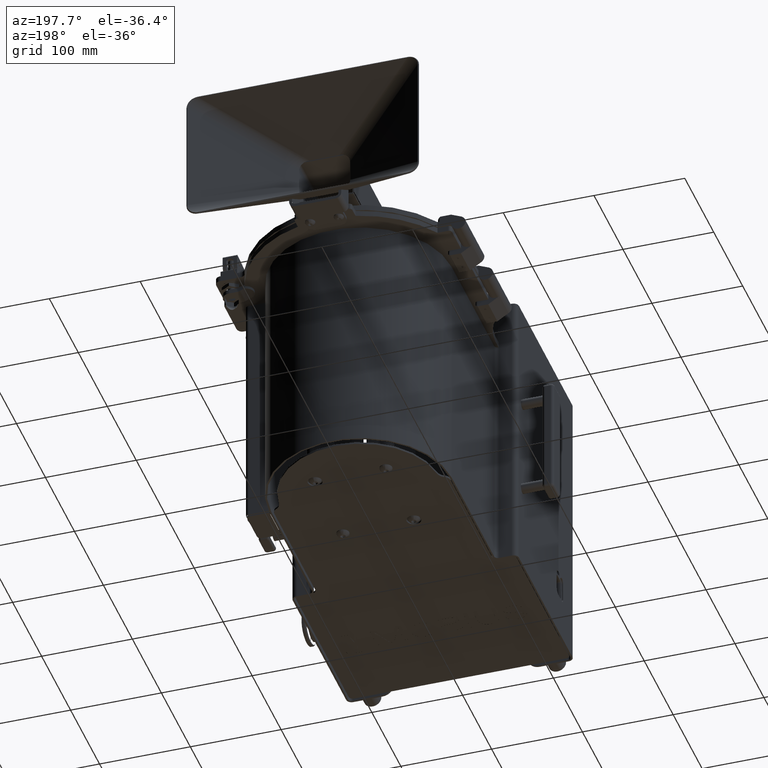
[diagram: clean part render]
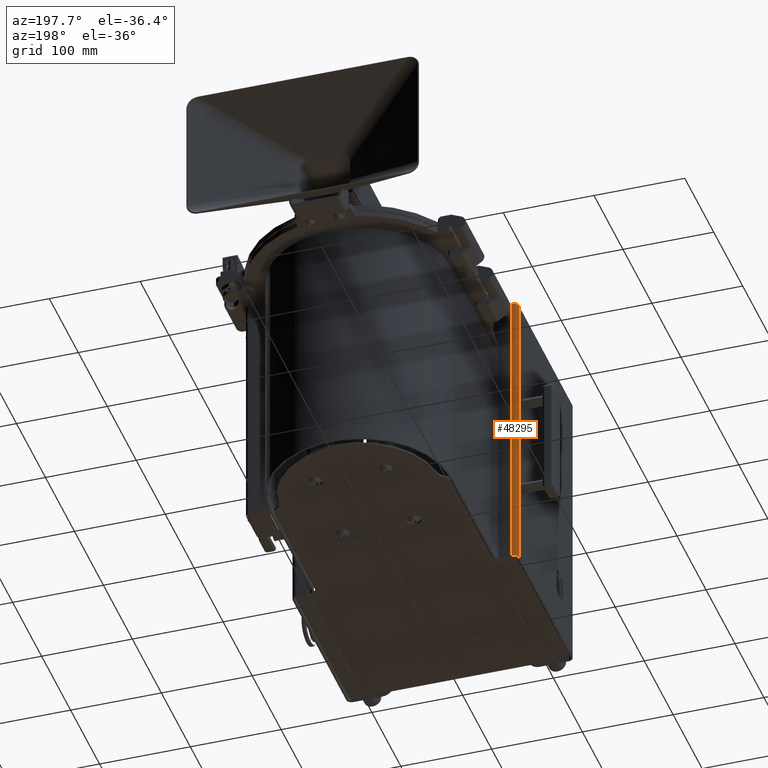
[diagram: same view with one face highlighted and labeled with its STEP entity id]
A machine part, auxiliary view. The second image highlights one B-rep face of the part: STEP entity #48295.
In plain terms, the highlighted cylindrical surface (edge-blend (fillet) strip) has radius 5.9207 mm, axis along (0, 0, -1).
Its self-contained STEP definition (entity closure, byte-faithful):
#2349 = CARTESIAN_POINT ( 'NONE',  ( -4.672432310000001365, -0.1550000000000023026, 12.92559999999999931 ) ) ;
#3017 = EDGE_LOOP ( 'NONE', ( #34570, #7613, #53975, #56835 ) ) ;
#3020 = AXIS2_PLACEMENT_3D ( 'NONE', #2349, #50555, #14282 ) ;
#5460 = EDGE_CURVE ( 'NONE', #42194, #8919, #56415, .T. ) ;
#7524 = DIRECTION ( 'NONE',  ( -1.690813884795607813E-16, -0.000000000000000000, 1.000000000000000000 ) ) ;
#7613 = ORIENTED_EDGE ( 'NONE', *, *, #75747, .F. ) ;
#8633 = CYLINDRICAL_SURFACE ( 'NONE', #12115, 0.2331000000000008621 ) ;
#8919 = VERTEX_POINT ( 'NONE', #43705 ) ;
#12115 = AXIS2_PLACEMENT_3D ( 'NONE', #76145, #40497, #39313 ) ;
#14063 = VECTOR ( 'NONE', #7524, 39.37007874015748143 ) ;
#14282 = DIRECTION ( 'NONE',  ( -1.000000000000000000, -8.789729709344444162E-16, 0.000000000000000000 ) ) ;
#16402 = CARTESIAN_POINT ( 'NONE',  ( -4.672432310000001365, -0.1550000000000023026, -2.040503532077707552E-16 ) ) ;
#26768 = VERTEX_POINT ( 'NONE', #69122 ) ;
#34570 = ORIENTED_EDGE ( 'NONE', *, *, #5460, .F. ) ;
#37348 = CIRCLE ( 'NONE', #3020, 0.2331000000000008621 ) ;
#39177 = AXIS2_PLACEMENT_3D ( 'NONE', #16402, #53878, #41102 ) ;
#39313 = DIRECTION ( 'NONE',  ( -1.000000000000000000, 0.000000000000000000, 0.000000000000000000 ) ) ;
#40487 = CARTESIAN_POINT ( 'NONE',  ( -4.905532309999999896, -0.1550000000000022471, -3.294427876360837486E-18 ) ) ;
#40497 = DIRECTION ( 'NONE',  ( 0.000000000000000000, 0.000000000000000000, -1.000000000000000000 ) ) ;
#41102 = DIRECTION ( 'NONE',  ( -1.000000000000000000, 0.000000000000000000, 0.000000000000000000 ) ) ;
#41518 = CARTESIAN_POINT ( 'NONE',  ( -4.672432310000000477, 0.07809999999999861497, -2.040503532077707552E-16 ) ) ;
#42194 = VERTEX_POINT ( 'NONE', #41518 ) ;
#43705 = CARTESIAN_POINT ( 'NONE',  ( -4.672432310000000477, 0.07809999999999749087, 12.92559999999999931 ) ) ;
#43852 = VERTEX_POINT ( 'NONE', #40487 ) ;
#44792 = VECTOR ( 'NONE', #44794, 39.37007874015748143 ) ;
#44794 = DIRECTION ( 'NONE',  ( -0.000000000000000000, -0.000000000000000000, 1.000000000000000000 ) ) ;
#48295 = ADVANCED_FACE ( 'NONE', ( #75760 ), #8633, .T. ) ;
#49372 = LINE ( 'NONE', #62983, #14063 ) ;
#50555 = DIRECTION ( 'NONE',  ( -0.000000000000000000, -0.000000000000000000, 1.000000000000000000 ) ) ;
#51945 = CARTESIAN_POINT ( 'NONE',  ( -4.672432310000000477, 0.07809999999999861497, 0.000000000000000000 ) ) ;
#53878 = DIRECTION ( 'NONE',  ( 0.000000000000000000, 0.000000000000000000, -1.000000000000000000 ) ) ;
#53975 = ORIENTED_EDGE ( 'NONE', *, *, #63047, .T. ) ;
#56415 = LINE ( 'NONE', #51945, #44792 ) ;
#56835 = ORIENTED_EDGE ( 'NONE', *, *, #66591, .F. ) ;
#62983 = CARTESIAN_POINT ( 'NONE',  ( -4.905532310000002560, -0.1550000000000023026, 12.92559999999999931 ) ) ;
#63047 = EDGE_CURVE ( 'NONE', #43852, #26768, #49372, .T. ) ;
#66591 = EDGE_CURVE ( 'NONE', #8919, #26768, #37348, .T. ) ;
#69122 = CARTESIAN_POINT ( 'NONE',  ( -4.905532310000001672, -0.1550000000000023026, 12.92559999999999931 ) ) ;
#75747 = EDGE_CURVE ( 'NONE', #43852, #42194, #77526, .T. ) ;
#75760 = FACE_OUTER_BOUND ( 'NONE', #3017, .T. ) ;
#76145 = CARTESIAN_POINT ( 'NONE',  ( -4.672432310000001365, -0.1550000000000023026, 0.000000000000000000 ) ) ;
#77526 = CIRCLE ( 'NONE', #39177, 0.2331000000000008621 ) ;